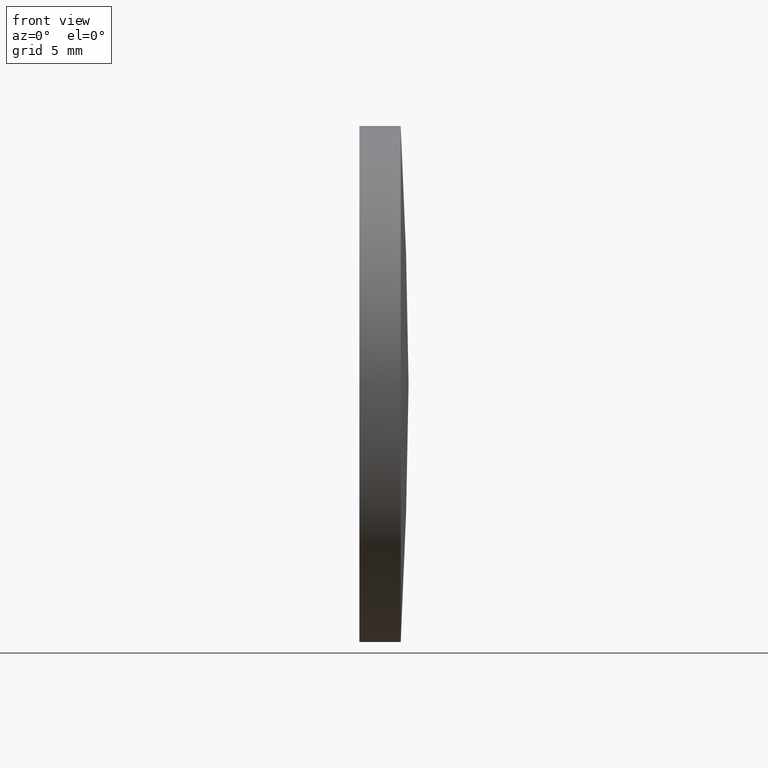
[diagram: clean part render]
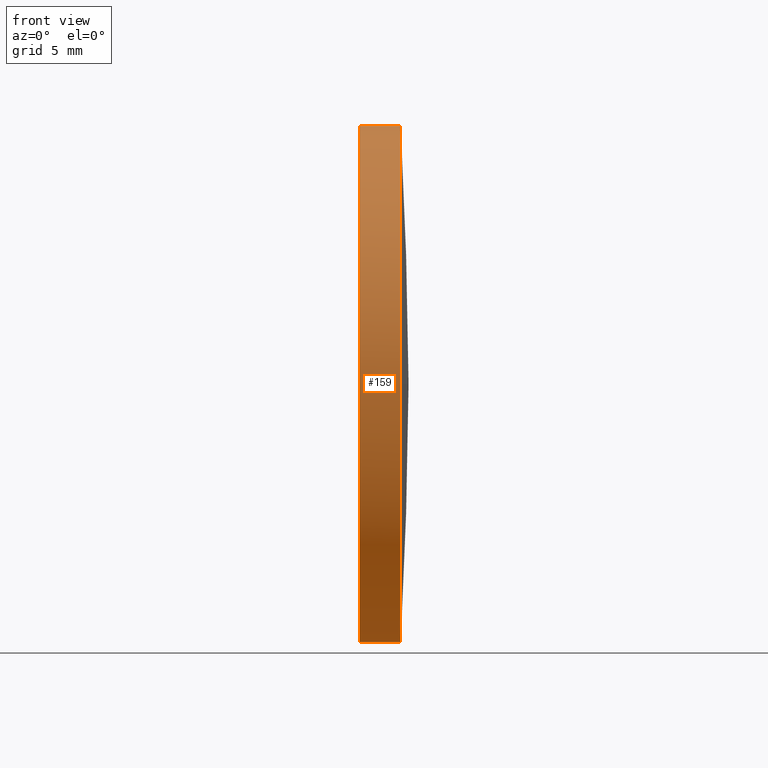
[diagram: same view with one face highlighted and labeled with its STEP entity id]
A machine part, front view. The second image highlights one B-rep face of the part: STEP entity #159.
In plain terms, the highlighted cylindrical surface (partial cylindrical patch) has radius 12.5 mm, axis along (-1, -0, -0).
Its self-contained STEP definition (entity closure, byte-faithful):
#3 = ORIENTED_EDGE ( 'NONE', *, *, #55, .T. ) ;
#7 = CARTESIAN_POINT ( 'NONE',  ( 694.1938871289664800, 53.94199021685585600, -12.50000000000000400 ) ) ;
#8 = ORIENTED_EDGE ( 'NONE', *, *, #15, .T. ) ;
#10 = DIRECTION ( 'NONE',  ( -1.000000000000000000, -0.0000000000000000000, -0.0000000000000000000 ) ) ;
#12 = EDGE_CURVE ( 'NONE', #100, #107, #86, .T. ) ;
#15 = EDGE_CURVE ( 'NONE', #156, #111, #44, .T. ) ;
#16 = EDGE_CURVE ( 'NONE', #100, #63, #82, .T. ) ;
#17 = CARTESIAN_POINT ( 'NONE',  ( 692.1647795505293700, 53.94199021685585600, 12.50000000000000400 ) ) ;
#26 = CARTESIAN_POINT ( 'NONE',  ( 696.1938871289664800, 41.44199021685576400, -1.530808498934165500E-015 ) ) ;
#27 = AXIS2_PLACEMENT_3D ( 'NONE', #93, #10, #135 ) ;
#28 = ORIENTED_EDGE ( 'NONE', *, *, #12, .T. ) ;
#40 = CIRCLE ( 'NONE', #27, 12.50000000000000400 ) ;
#44 = LINE ( 'NONE', #17, #124 ) ;
#51 = DIRECTION ( 'NONE',  ( -1.000000000000000000, -0.0000000000000000000, -0.0000000000000000000 ) ) ;
#55 = EDGE_CURVE ( 'NONE', #107, #156, #40, .T. ) ;
#56 = AXIS2_PLACEMENT_3D ( 'NONE', #150, #113, #62 ) ;
#62 = DIRECTION ( 'NONE',  ( 0.0000000000000000000, 0.0000000000000000000, 1.000000000000000000 ) ) ;
#63 = VERTEX_POINT ( 'NONE', #7 ) ;
#66 = EDGE_CURVE ( 'NONE', #63, #111, #75, .T. ) ;
#75 = CIRCLE ( 'NONE', #129, 12.50000000000000400 ) ;
#82 = LINE ( 'NONE', #109, #154 ) ;
#86 = CIRCLE ( 'NONE', #133, 12.50000000000000400 ) ;
#88 = CARTESIAN_POINT ( 'NONE',  ( 696.1938871289664800, 53.94199021685585600, 0.0000000000000000000 ) ) ;
#93 = CARTESIAN_POINT ( 'NONE',  ( 696.1938871289664800, 53.94199021685585600, 0.0000000000000000000 ) ) ;
#100 = VERTEX_POINT ( 'NONE', #126 ) ;
#107 = VERTEX_POINT ( 'NONE', #26 ) ;
#109 = CARTESIAN_POINT ( 'NONE',  ( 692.1647795505293700, 53.94199021685585600, -12.50000000000000400 ) ) ;
#111 = VERTEX_POINT ( 'NONE', #125 ) ;
#113 = DIRECTION ( 'NONE',  ( -1.000000000000000000, -0.0000000000000000000, -0.0000000000000000000 ) ) ;
#120 = DIRECTION ( 'NONE',  ( -1.000000000000000000, -0.0000000000000000000, -0.0000000000000000000 ) ) ;
#124 = VECTOR ( 'NONE', #120, 1000.000000000000000 ) ;
#125 = CARTESIAN_POINT ( 'NONE',  ( 694.1938871289664800, 53.94199021685585600, 12.50000000000000400 ) ) ;
#126 = CARTESIAN_POINT ( 'NONE',  ( 696.1938871289664800, 53.94199021685585600, -12.50000000000000400 ) ) ;
#129 = AXIS2_PLACEMENT_3D ( 'NONE', #137, #51, #151 ) ;
#133 = AXIS2_PLACEMENT_3D ( 'NONE', #88, #146, #147 ) ;
#135 = DIRECTION ( 'NONE',  ( 0.0000000000000000000, 0.0000000000000000000, 1.000000000000000000 ) ) ;
#137 = CARTESIAN_POINT ( 'NONE',  ( 694.1938871289664800, 53.94199021685585600, 0.0000000000000000000 ) ) ;
#140 = FACE_OUTER_BOUND ( 'NONE', #168, .T. ) ;
#141 = ORIENTED_EDGE ( 'NONE', *, *, #16, .F. ) ;
#143 = ORIENTED_EDGE ( 'NONE', *, *, #66, .F. ) ;
#146 = DIRECTION ( 'NONE',  ( -1.000000000000000000, -0.0000000000000000000, -0.0000000000000000000 ) ) ;
#147 = DIRECTION ( 'NONE',  ( 0.0000000000000000000, 0.0000000000000000000, 1.000000000000000000 ) ) ;
#150 = CARTESIAN_POINT ( 'NONE',  ( 692.1647795505293700, 53.94199021685585600, 0.0000000000000000000 ) ) ;
#151 = DIRECTION ( 'NONE',  ( 0.0000000000000000000, 0.0000000000000000000, 1.000000000000000000 ) ) ;
#153 = CYLINDRICAL_SURFACE ( 'NONE', #56, 12.50000000000000400 ) ;
#154 = VECTOR ( 'NONE', #163, 1000.000000000000000 ) ;
#156 = VERTEX_POINT ( 'NONE', #175 ) ;
#159 = ADVANCED_FACE ( 'NONE', ( #140 ), #153, .T. ) ;
#163 = DIRECTION ( 'NONE',  ( -1.000000000000000000, -0.0000000000000000000, -0.0000000000000000000 ) ) ;
#168 = EDGE_LOOP ( 'NONE', ( #141, #28, #3, #8, #143 ) ) ;
#175 = CARTESIAN_POINT ( 'NONE',  ( 696.1938871289664800, 53.94199021685585600, 12.50000000000000400 ) ) ;